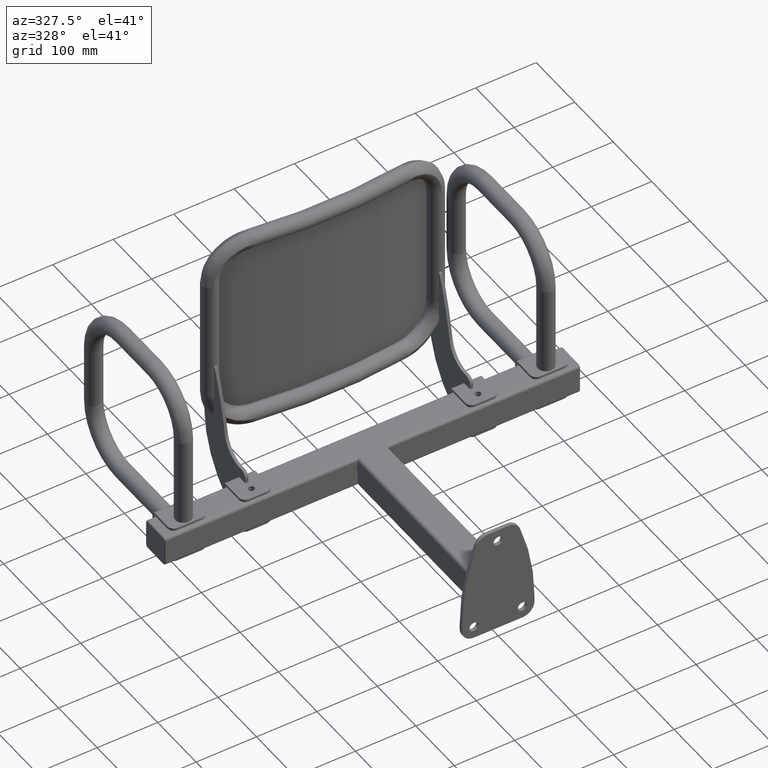
[diagram: clean part render]
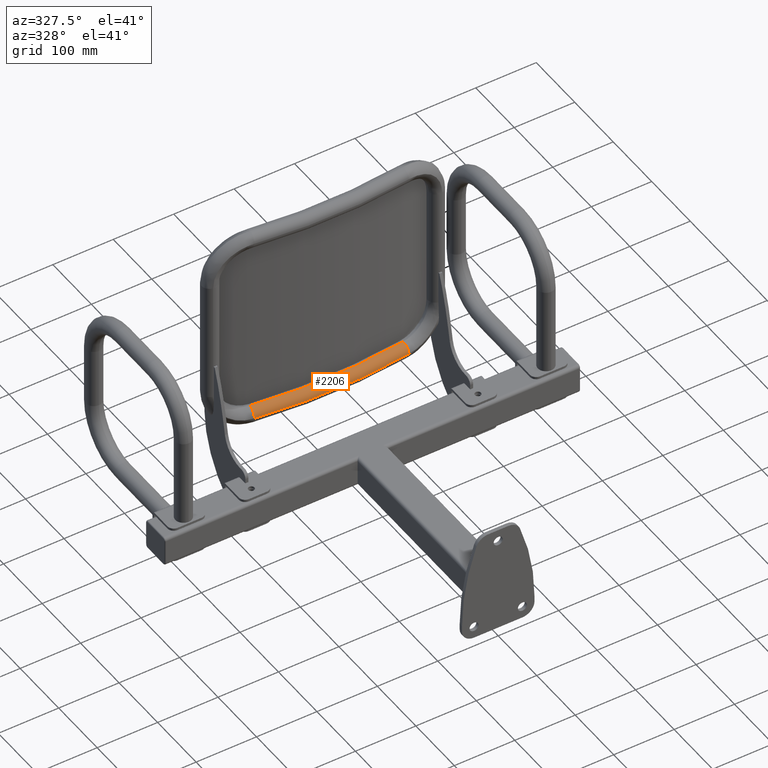
[diagram: same view with one face highlighted and labeled with its STEP entity id]
A machine part, auxiliary view. The second image highlights one B-rep face of the part: STEP entity #2206.
In plain terms, the highlighted toroidal blend (fillet) surface has major radius 930 mm and minor (blend) radius 13.45 mm.
Its self-contained STEP definition (entity closure, byte-faithful):
#30 = EDGE_CURVE ( 'NONE', #9499, #9489, #6358, .T. ) ;
#167 = ORIENTED_EDGE ( 'NONE', *, *, #30, .F. ) ;
#168 = ORIENTED_EDGE ( 'NONE', *, *, #3671, .F. ) ;
#200 = ORIENTED_EDGE ( 'NONE', *, *, #9107, .T. ) ;
#342 = CARTESIAN_POINT ( 'NONE',  ( 126.1034090729112900, -13.17078045312854500, -161.5500000000000100 ) ) ;
#343 = DIRECTION ( 'NONE',  ( -0.9907643406730017900, -0.1355950635192593500, -1.119262167617787800E-015 ) ) ;
#344 = DIRECTION ( 'NONE',  ( 0.1355950635192593700, -0.9907643406730019000, 0.0000000000000000000 ) ) ;
#1432 = CARTESIAN_POINT ( 'NONE',  ( 0.0000000000000000000, 908.2400563727633200, -148.1000000000000200 ) ) ;
#1433 = DIRECTION ( 'NONE',  ( -0.0000000000000000000, -0.0000000000000000000, -1.000000000000000000 ) ) ;
#1434 = DIRECTION ( 'NONE',  ( 1.000000000000000000, 0.0000000000000000000, 0.0000000000000000000 ) ) ;
#1635 = CARTESIAN_POINT ( 'NONE',  ( -126.1034090729113500, -13.17078045312865700, -148.1000000000000200 ) ) ;
#1645 = CARTESIAN_POINT ( 'NONE',  ( -127.9271626772453500, -26.49656083518032200, -161.5500000000000400 ) ) ;
#1787 = VERTEX_POINT ( 'NONE', #3304 ) ;
#1937 = CIRCLE ( 'NONE', #9378, 930.0000000000001100 ) ;
#2206 = ADVANCED_FACE ( 'NONE', ( #2725 ), #2726, .T. ) ;
#2725 = FACE_OUTER_BOUND ( 'NONE', #7421, .T. ) ;
#2726 = TOROIDAL_SURFACE ( 'NONE', #4694, 930.0000000000001100, 13.44999999999999900 ) ;
#2871 = EDGE_CURVE ( 'NONE', #5010, #1787, #5562, .T. ) ;
#3287 = CARTESIAN_POINT ( 'NONE',  ( 0.0000000000000000000, 908.2400563727633200, -161.5500000000000400 ) ) ;
#3289 = DIRECTION ( 'NONE',  ( -0.0000000000000000000, -0.0000000000000000000, -1.000000000000000000 ) ) ;
#3291 = DIRECTION ( 'NONE',  ( 1.000000000000000000, 0.0000000000000000000, 0.0000000000000000000 ) ) ;
#3304 = CARTESIAN_POINT ( 'NONE',  ( 126.1034090729112900, -13.17078045312858200, -148.1000000000000200 ) ) ;
#3514 = ORIENTED_EDGE ( 'NONE', *, *, #2871, .T. ) ;
#3671 = EDGE_CURVE ( 'NONE', #5010, #9499, #5723, .T. ) ;
#4694 = AXIS2_PLACEMENT_3D ( 'NONE', #9727, #9726, #9729 ) ;
#4875 = AXIS2_PLACEMENT_3D ( 'NONE', #342, #343, #344 ) ;
#4951 = CARTESIAN_POINT ( 'NONE',  ( -126.1034090729113200, -13.17078045312844700, -161.5500000000000400 ) ) ;
#4952 = DIRECTION ( 'NONE',  ( -0.9907643406730017900, 0.1355950635192593700, 9.968428680345902500E-016 ) ) ;
#4953 = DIRECTION ( 'NONE',  ( -0.1355950635192593700, -0.9907643406730019000, 0.0000000000000000000 ) ) ;
#5010 = VERTEX_POINT ( 'NONE', #7877 ) ;
#5562 = CIRCLE ( 'NONE', #4875, 13.44999999999999900 ) ;
#5723 = CIRCLE ( 'NONE', #10186, 943.4500000000001600 ) ;
#6358 = CIRCLE ( 'NONE', #9505, 13.44999999999999900 ) ;
#7421 = EDGE_LOOP ( 'NONE', ( #3514, #200, #167, #168 ) ) ;
#7877 = CARTESIAN_POINT ( 'NONE',  ( 127.9271626772453200, -26.49656083518042100, -161.5500000000000100 ) ) ;
#9107 = EDGE_CURVE ( 'NONE', #1787, #9489, #1937, .T. ) ;
#9378 = AXIS2_PLACEMENT_3D ( 'NONE', #1432, #1433, #1434 ) ;
#9489 = VERTEX_POINT ( 'NONE', #1635 ) ;
#9499 = VERTEX_POINT ( 'NONE', #1645 ) ;
#9505 = AXIS2_PLACEMENT_3D ( 'NONE', #4951, #4952, #4953 ) ;
#9726 = DIRECTION ( 'NONE',  ( 0.0000000000000000000, 0.0000000000000000000, 1.000000000000000000 ) ) ;
#9727 = CARTESIAN_POINT ( 'NONE',  ( 0.0000000000000000000, 908.2400563727633200, -161.5500000000000400 ) ) ;
#9729 = DIRECTION ( 'NONE',  ( 1.000000000000000000, 0.0000000000000000000, 0.0000000000000000000 ) ) ;
#10186 = AXIS2_PLACEMENT_3D ( 'NONE', #3287, #3289, #3291 ) ;